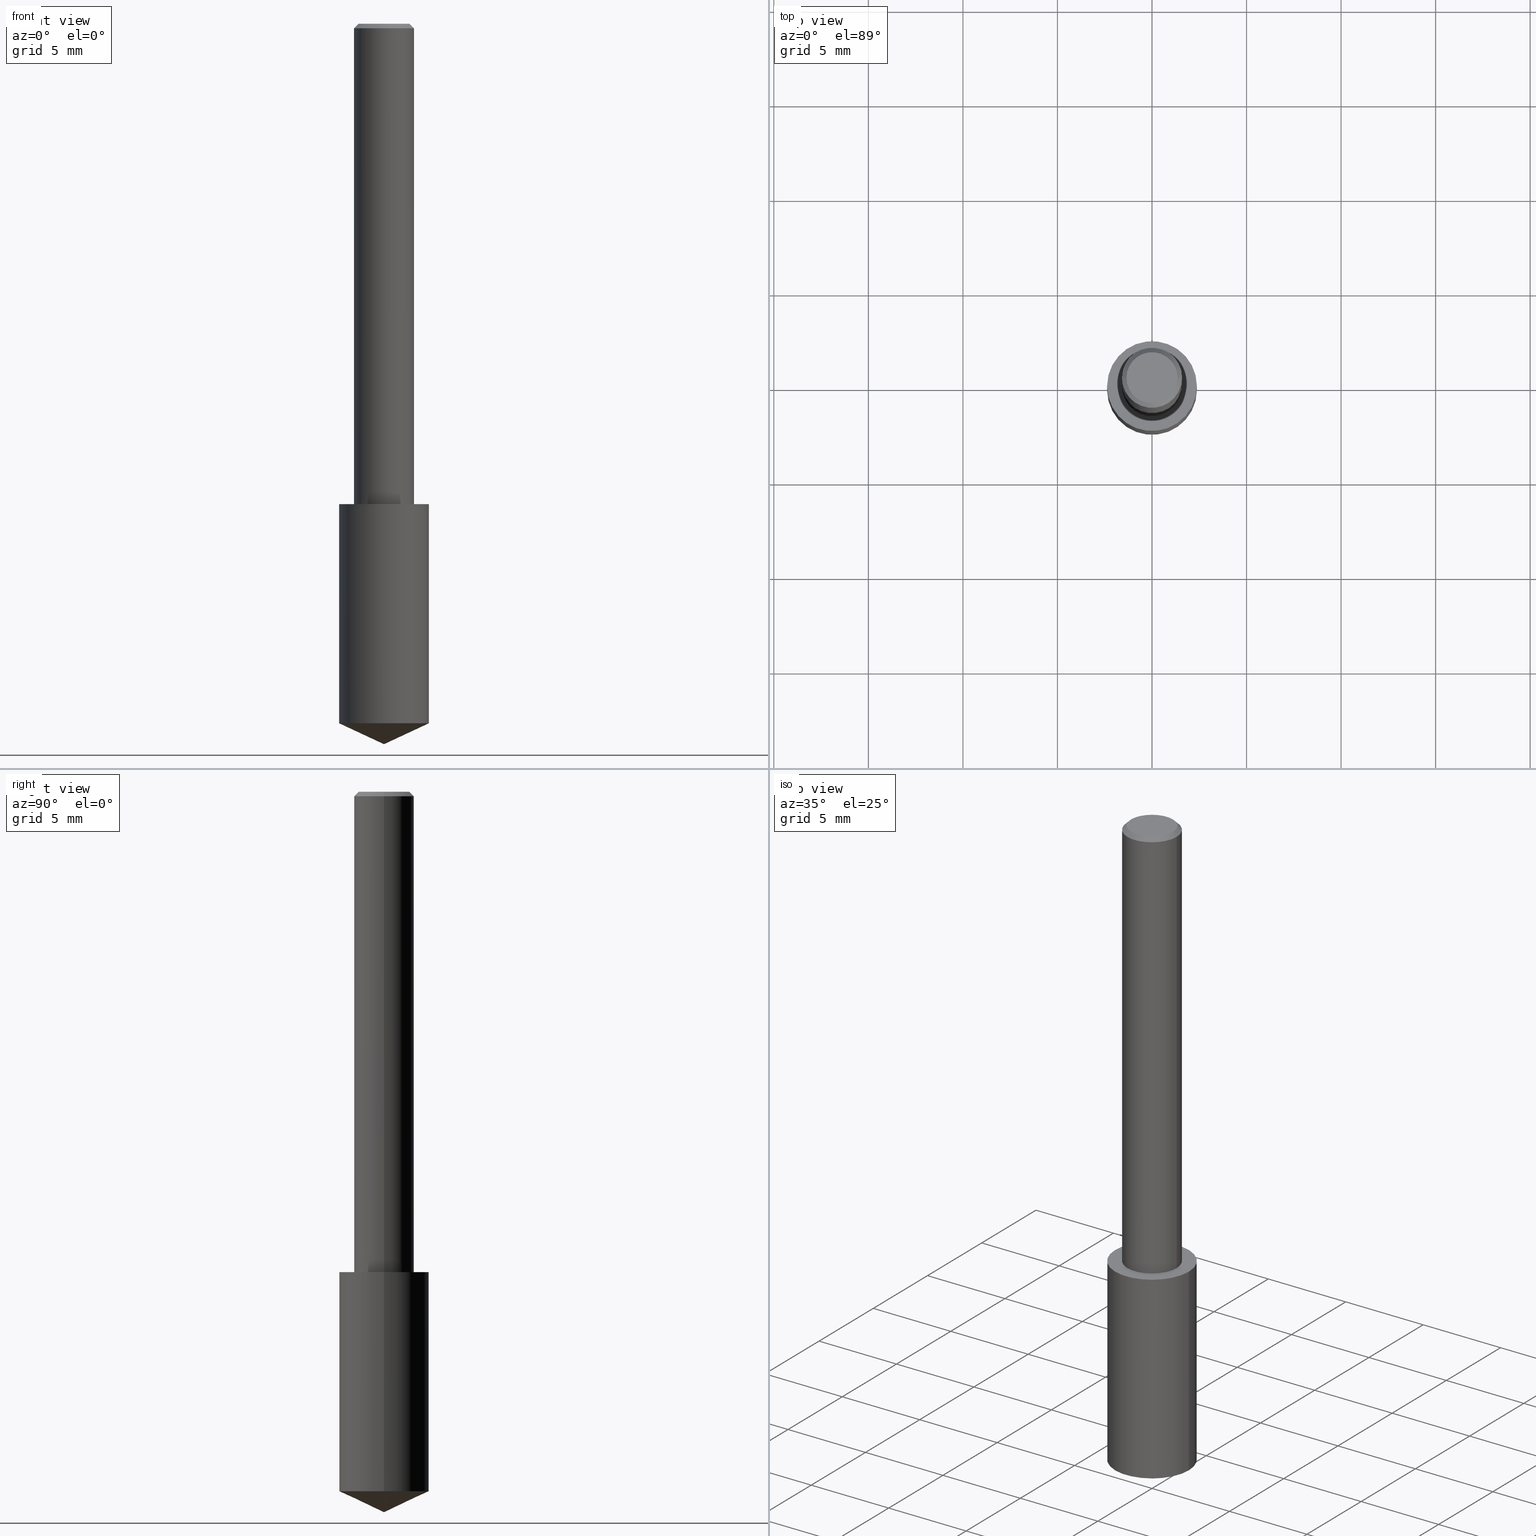
[diagram: canonical four-view strip — front | top / right | iso, engineering-drawing reading convention]
A machine part, canonical four-view strip (front | top / right | iso — engineering-drawing reading convention). The complete STEP part file that produces these views, byte-faithful:
ISO-10303-21;
HEADER;
FILE_DESCRIPTION (( 'STEP AP203' ),
    '1' );
FILE_NAME ('06121.STEP',
    '2024-04-30T18:30:01',
    ( '' ),
    ( '' ),
    'SwSTEP 2.0',
    'SolidWorks 2023',
    '' );
FILE_SCHEMA (( 'CONFIG_CONTROL_DESIGN' ));
ENDSEC;

DATA;
#1 = CARTESIAN_POINT ( 'NONE',  ( 0.06250000000000012490, -3.927916506198539224E-15, -1.000000000000000222 ) ) ;
#2 = AXIS2_PLACEMENT_3D ( 'NONE', #210, #87, #301 ) ;
#3 = LINE ( 'NONE', #76, #184 ) ;
#4 = VERTEX_POINT ( 'NONE', #61 ) ;
#5 = CIRCLE ( 'NONE', #177, 0.09349999999999999978 ) ;
#6 = PERSON_AND_ORGANIZATION ( #99, #314 ) ;
#7 = PERSON_AND_ORGANIZATION ( #99, #314 ) ;
#8 = ORIENTED_EDGE ( 'NONE', *, *, #222, .T. ) ;
#9 = AXIS2_PLACEMENT_3D ( 'NONE', #111, #305, #189 ) ;
#10 = DIRECTION ( 'NONE',  ( -2.445468806185136877E-29, 3.491481338843145188E-15, 1.000000000000000000 ) ) ;
#11 = CARTESIAN_POINT ( 'NONE',  ( 0.09349999999999998590, -5.737901249130553981E-15, -1.456400233962507951 ) ) ;
#12 = SHAPE_DEFINITION_REPRESENTATION ( #206, #250 ) ;
#13 = CARTESIAN_POINT ( 'NONE',  ( 0.05312499999999999861, -4.129888592719939842E-16, 3.061617000609493422E-21 ) ) ;
#14 = APPROVAL ( #331, 'UNSPECIFIED' ) ;
#15 = APPROVAL_ROLE ( '' ) ;
#16 = CARTESIAN_POINT ( 'NONE',  ( -0.06250000000000006939, 4.440892098500631092E-16, -3.074334431409319267E-30 ) ) ;
#17 = CARTESIAN_POINT ( 'NONE',  ( -7.487088864773345706E-50, 1.068957861474247695E-35, 3.061616997868395197E-21 ) ) ;
#18 = DIRECTION ( 'NONE',  ( -2.445468806185136877E-29, 3.491481338843145188E-15, 1.000000000000000000 ) ) ;
#19 = DIRECTION ( 'NONE',  ( -2.445468806185136877E-29, 3.491481338843145188E-15, 1.000000000000000000 ) ) ;
#20 = DIRECTION ( 'NONE',  ( 1.000000000000000000, -6.982962677686264344E-15, 0.000000000000000000 ) ) ;
#21 = CC_DESIGN_APPROVAL ( #158, ( #27 ) ) ;
#22 = DIRECTION ( 'NONE',  ( -2.445468806185136597E-29, 3.491481338843145583E-15, 1.000000000000000000 ) ) ;
#23 = PRODUCT_DEFINITION ( 'UNKNOWN', '', #150, #71 ) ;
#24 = EDGE_CURVE ( 'NONE', #299, #265, #247, .T. ) ;
#25 = AXIS2_PLACEMENT_3D ( 'NONE', #75, #175, #312 ) ;
#26 = VECTOR ( 'NONE', #18, 39.37007874015748143 ) ;
#27 = SECURITY_CLASSIFICATION ( '', '', #243 ) ;
#28 = CC_DESIGN_DATE_AND_TIME_ASSIGNMENT ( #337, #192, ( #27 ) ) ;
#29 = ORIENTED_EDGE ( 'NONE', *, *, #93, .T. ) ;
#30 = DIRECTION ( 'NONE',  ( -2.445468806185136597E-29, 3.491481338843145583E-15, 1.000000000000000000 ) ) ;
#31 = CARTESIAN_POINT ( 'NONE',  ( -9.261009624683002666E-28, 1.322226732217803884E-13, 37.87007874015748143 ) ) ;
#32 = PERSON_AND_ORGANIZATION ( #99, #314 ) ;
#33 = AXIS2_PLACEMENT_3D ( 'NONE', #330, #22, #116 ) ;
#34 = ORIENTED_EDGE ( 'NONE', *, *, #251, .F. ) ;
#35 = ORIENTED_EDGE ( 'NONE', *, *, #129, .F. ) ;
#36 = ADVANCED_FACE ( 'NONE', ( #89 ), #147, .T. ) ;
#37 = PERSON_AND_ORGANIZATION ( #99, #314 ) ;
#38 = ORIENTED_EDGE ( 'NONE', *, *, #190, .F. ) ;
#39 = CARTESIAN_POINT ( 'NONE',  ( -0.09349999999999999978, -2.827123880907452502E-15, -1.000000000000000222 ) ) ;
#40 = DIRECTION ( 'NONE',  ( -2.445468806185136597E-29, 3.491481338843145583E-15, 1.000000000000000000 ) ) ;
#41 = DIRECTION ( 'NONE',  ( -1.000000000000000000, 6.982962677686265922E-15, -4.876176775795935793E-29 ) ) ;
#42 = PRODUCT_RELATED_PRODUCT_CATEGORY ( 'detail', '', ( #304 ) ) ;
#43 = PLANE ( 'NONE',  #155 ) ;
#44 = PERSON_AND_ORGANIZATION_ROLE ( 'design_supplier' ) ;
#45 = DIRECTION ( 'NONE',  ( 1.000000000000000000, -6.982962677686266711E-15, 0.000000000000000000 ) ) ;
#46 = FACE_OUTER_BOUND ( 'NONE', #291, .T. ) ;
#47 = DIRECTION ( 'NONE',  ( 0.9063077870366507138, -4.853149677051390623E-15, 0.4226182617406978315 ) ) ;
#48 = LINE ( 'NONE', #39, #199 ) ;
#49 = PERSON_AND_ORGANIZATION ( #99, #314 ) ;
#50 = LINE ( 'NONE', #16, #231 ) ;
#51 = AXIS2_PLACEMENT_3D ( 'NONE', #140, #115, #276 ) ;
#52 = APPROVAL_PERSON_ORGANIZATION ( #303, #224, #160 ) ;
#53 = EDGE_CURVE ( 'NONE', #232, #259, #296, .T. ) ;
#54 = APPROVAL_PERSON_ORGANIZATION ( #6, #14, #102 ) ;
#55 = APPROVAL_STATUS ( 'not_yet_approved' ) ;
#56 = ORIENTED_EDGE ( 'NONE', *, *, #333, .T. ) ;
#57 = CC_DESIGN_PERSON_AND_ORGANIZATION_ASSIGNMENT ( #37, #137, ( #150 ) ) ;
#58 = DIRECTION ( 'NONE',  ( 0.000000000000000000, 0.000000000000000000, 1.000000000000000000 ) ) ;
#59 = DIRECTION ( 'NONE',  ( -2.445468806185136597E-29, 3.491481338843145583E-15, 1.000000000000000000 ) ) ;
#60 = EDGE_LOOP ( 'NONE', ( #101, #133, #235, #83 ) ) ;
#61 = CARTESIAN_POINT ( 'NONE',  ( -0.09349999999999999978, -3.623880330869323109E-15, -1.000000000000000222 ) ) ;
#62 = COORDINATED_UNIVERSAL_TIME_OFFSET ( 5, 0, .BEHIND. ) ;
#63 = CARTESIAN_POINT ( 'NONE',  ( 3.561581341476047635E-29, -5.084994238766887980E-15, -1.456400233962507951 ) ) ;
#64 = DIRECTION ( 'NONE',  ( 1.000000000000000000, 0.000000000000000000, 0.000000000000000000 ) ) ;
#65 = EDGE_CURVE ( 'NONE', #259, #232, #149, .T. ) ;
#66 = DIRECTION ( 'NONE',  ( -0.7071067811865453523, 2.468850131082234184E-15, -0.7071067811865496822 ) ) ;
#67 = CALENDAR_DATE ( 2024, 30, 4 ) ;
#68 = VERTEX_POINT ( 'NONE', #191 ) ;
#69 = EDGE_CURVE ( 'NONE', #79, #4, #48, .T. ) ;
#70 = DIRECTION ( 'NONE',  ( -2.445468806185136597E-29, 3.491481338843145583E-15, 1.000000000000000000 ) ) ;
#71 = DESIGN_CONTEXT ( 'detailed design', #105, 'design' ) ;
#72 = EDGE_CURVE ( 'NONE', #232, #157, #144, .T. ) ;
#73 = AXIS2_PLACEMENT_3D ( 'NONE', #153, #171, #151 ) ;
#74 = CC_DESIGN_APPROVAL ( #224, ( #150 ) ) ;
#75 = CARTESIAN_POINT ( 'NONE',  ( 2.292627005798580186E-31, -3.273263755165470184E-17, -0.009375000000000060368 ) ) ;
#76 = CARTESIAN_POINT ( 'NONE',  ( 3.668203209277704895E-29, -5.237222008264718177E-15, -1.500000000000000222 ) ) ;
#77 = ORIENTED_EDGE ( 'NONE', *, *, #96, .F. ) ;
#78 = APPROVAL_DATE_TIME ( #208, #14 ) ;
#79 = VERTEX_POINT ( 'NONE', #238 ) ;
#80 = VERTEX_POINT ( 'NONE', #242 ) ;
#81 = ORIENTED_EDGE ( 'NONE', *, *, #333, .F. ) ;
#82 = COORDINATED_UNIVERSAL_TIME_OFFSET ( 5, 0, .BEHIND. ) ;
#83 = ORIENTED_EDGE ( 'NONE', *, *, #284, .F. ) ;
#84 =( LENGTH_UNIT ( ) NAMED_UNIT ( * ) SI_UNIT ( $, .METRE. ) );
#85 = AXIS2_PLACEMENT_3D ( 'NONE', #306, #245, #100 ) ;
#86 = DIRECTION ( 'NONE',  ( 2.445468806185136597E-29, -3.491481338843145583E-15, -1.000000000000000000 ) ) ;
#87 = DIRECTION ( 'NONE',  ( -2.445468806185136597E-29, 3.491481338843145583E-15, 1.000000000000000000 ) ) ;
#88 = CARTESIAN_POINT ( 'NONE',  ( -3.743544432386672853E-50, 5.344789307371238476E-36, 1.530808498934197599E-21 ) ) ;
#89 = FACE_OUTER_BOUND ( 'NONE', #229, .T. ) ;
#90 = DIRECTION ( 'NONE',  ( 2.438088387897960049E-29, -3.491481338843145188E-15, -1.000000000000000000 ) ) ;
#91 = CARTESIAN_POINT ( 'NONE',  ( 2.292627005798580186E-31, -3.273263755165470184E-17, -0.009375000000000060368 ) ) ;
#92 = CARTESIAN_POINT ( 'NONE',  ( 0.06250000000000006939, -4.364351673553921624E-16, 3.047610484872463374E-30 ) ) ;
#93 = EDGE_CURVE ( 'NONE', #205, #68, #154, .T. ) ;
#94 = PERSON_AND_ORGANIZATION ( #99, #314 ) ;
#95 = DIRECTION ( 'NONE',  ( -2.445468806185136877E-29, 3.491481338843145188E-15, 1.000000000000000000 ) ) ;
#96 = EDGE_CURVE ( 'NONE', #292, #4, #113, .T. ) ;
#97 = ADVANCED_FACE ( 'NONE', ( #335 ), #310, .F. ) ;
#98 = ORIENTED_EDGE ( 'NONE', *, *, #124, .F. ) ;
#99 = PERSON ( 'UNSPECIFIED', 'UNSPECIFIED', 'UNSPECIFIED', ('UNSPECIFIED'), ('UNSPECIFIED'), ('UNSPECIFIED') ) ;
#100 = DIRECTION ( 'NONE',  ( 1.000000000000000000, -6.982962677686266711E-15, 0.000000000000000000 ) ) ;
#101 = ORIENTED_EDGE ( 'NONE', *, *, #69, .F. ) ;
#102 = APPROVAL_ROLE ( '' ) ;
#103 = AXIS2_PLACEMENT_3D ( 'NONE', #91, #86, #112 ) ;
#104 = DIRECTION ( 'NONE',  ( -2.445468806185136597E-29, 3.491481338843145583E-15, 1.000000000000000000 ) ) ;
#105 = APPLICATION_CONTEXT ( 'configuration controlled 3d designs of mechanical parts and assemblies' ) ;
#106 = DIRECTION ( 'NONE',  ( 1.000000000000000000, -6.982962677686266711E-15, 0.000000000000000000 ) ) ;
#107 = ORIENTED_EDGE ( 'NONE', *, *, #166, .T. ) ;
#108 = CALENDAR_DATE ( 2024, 30, 4 ) ;
#109 = DIRECTION ( 'NONE',  ( 1.000000000000000000, -6.982962677686266711E-15, 4.876176628004948512E-29 ) ) ;
#110 = CIRCLE ( 'NONE', #307, 0.09349999999999999978 ) ;
#111 = CARTESIAN_POINT ( 'NONE',  ( 2.445468806185137438E-29, -3.491481338843146371E-15, -1.000000000000000222 ) ) ;
#112 = DIRECTION ( 'NONE',  ( -1.000000000000000000, 6.982962677686266711E-15, 0.000000000000000000 ) ) ;
#113 = CIRCLE ( 'NONE', #2, 0.09349999999999999978 ) ;
#114 = APPROVAL_PERSON_ORGANIZATION ( #49, #158, #15 ) ;
#115 = DIRECTION ( 'NONE',  ( -2.445468806185136597E-29, 3.491481338843145583E-15, 1.000000000000000000 ) ) ;
#116 = DIRECTION ( 'NONE',  ( 1.000000000000000000, -6.982962677686265133E-15, 0.000000000000000000 ) ) ;
#117 = CARTESIAN_POINT ( 'NONE',  ( 3.465596751686188839E-29, -2.030600058808780877E-15, -1.000000000000000222 ) ) ;
#118 = FACE_OUTER_BOUND ( 'NONE', #60, .T. ) ;
#119 = PERSON_AND_ORGANIZATION_ROLE ( 'classification_officer' ) ;
#120 = LINE ( 'NONE', #92, #26 ) ;
#121 = LINE ( 'NONE', #272, #262 ) ;
#122 = AXIS2_PLACEMENT_3D ( 'NONE', #195, #273, #165 ) ;
#123 = DIRECTION ( 'NONE',  ( 1.000000000000000000, -6.982962677686266711E-15, 4.876176775795935793E-29 ) ) ;
#124 = EDGE_CURVE ( 'NONE', #259, #80, #332, .T. ) ;
#125 = VECTOR ( 'NONE', #139, 39.37007874015748143 ) ;
#126 = ADVANCED_FACE ( 'NONE', ( #309 ), #141, .T. ) ;
#127 = ORIENTED_EDGE ( 'NONE', *, *, #53, .T. ) ;
#128 = DIRECTION ( 'NONE',  ( 2.438088387897960049E-29, -3.491481338843145188E-15, -1.000000000000000000 ) ) ;
#129 = EDGE_CURVE ( 'NONE', #68, #80, #50, .T. ) ;
#130 = EDGE_LOOP ( 'NONE', ( #237, #185, #179, #98 ) ) ;
#131 = ORIENTED_EDGE ( 'NONE', *, *, #166, .F. ) ;
#132 = VECTOR ( 'NONE', #66, 39.37007874015748143 ) ;
#133 = ORIENTED_EDGE ( 'NONE', *, *, #246, .T. ) ;
#134 = LOCAL_TIME ( 14, 30, 1.000000000000000000, #62 ) ;
#135 = PLANE ( 'NONE',  #193 ) ;
#136 = EDGE_LOOP ( 'NONE', ( #324, #156, #180, #254 ) ) ;
#137 = PERSON_AND_ORGANIZATION_ROLE ( 'creator' ) ;
#138 = EDGE_LOOP ( 'NONE', ( #201, #127 ) ) ;
#139 = DIRECTION ( 'NONE',  ( 0.7071067811865453523, -7.319954787623248157E-15, -0.7071067811865496822 ) ) ;
#140 = CARTESIAN_POINT ( 'NONE',  ( 2.445468806185137438E-29, -3.491481338843146371E-15, -1.000000000000000222 ) ) ;
#141 = CONICAL_SURFACE ( 'NONE', #169, 84.42940631927434936, 1.134464013796316006 ) ;
#142 = DIRECTION ( 'NONE',  ( -2.445468806185136597E-29, 3.491481338843145583E-15, 1.000000000000000000 ) ) ;
#143 = DATE_AND_TIME ( #67, #164 ) ;
#144 = LINE ( 'NONE', #170, #125 ) ;
#145 = ADVANCED_FACE ( 'NONE', ( #118 ), #217, .T. ) ;
#146 = DIRECTION ( 'NONE',  ( -2.445468806185136597E-29, 3.491481338843145583E-15, 1.000000000000000000 ) ) ;
#147 = CYLINDRICAL_SURFACE ( 'NONE', #9, 0.09349999999999999978 ) ;
#148 = APPROVAL_STATUS ( 'not_yet_approved' ) ;
#149 = CIRCLE ( 'NONE', #252, 0.05312499999999999861 ) ;
#150 = PRODUCT_DEFINITION_FORMATION_WITH_SPECIFIED_SOURCE ( 'ANY', '', #304, .NOT_KNOWN. ) ;
#151 = DIRECTION ( 'NONE',  ( 1.000000000000000000, -6.982962677686266711E-15, 0.000000000000000000 ) ) ;
#152 = CC_DESIGN_DATE_AND_TIME_ASSIGNMENT ( #240, #289, ( #23 ) ) ;
#153 = CARTESIAN_POINT ( 'NONE',  ( 2.292627005798580186E-31, -3.273263755165470184E-17, -0.009375000000000060368 ) ) ;
#154 = CIRCLE ( 'NONE', #241, 0.06250000000000012490 ) ;
#155 = AXIS2_PLACEMENT_3D ( 'NONE', #117, #90, #302 ) ;
#156 = ORIENTED_EDGE ( 'NONE', *, *, #65, .F. ) ;
#157 = VERTEX_POINT ( 'NONE', #274 ) ;
#158 = APPROVAL ( #148, 'UNSPECIFIED' ) ;
#159 = ORIENTED_EDGE ( 'NONE', *, *, #24, .T. ) ;
#160 = APPROVAL_ROLE ( '' ) ;
#161 =( CONVERSION_BASED_UNIT ( 'INCH', #186 ) LENGTH_UNIT ( ) NAMED_UNIT ( #196 ) );
#162 = MANIFOLD_SOLID_BREP ( 'Body-Move/Copy2[2]', #256 ) ;
#163 = FACE_OUTER_BOUND ( 'NONE', #228, .T. ) ;
#164 = LOCAL_TIME ( 14, 30, 1.000000000000000000, #308 ) ;
#165 = DIRECTION ( 'NONE',  ( 1.000000000000000000, -6.982962677686266711E-15, 4.876176628004948512E-29 ) ) ;
#166 = EDGE_CURVE ( 'NONE', #68, #205, #223, .T. ) ;
#167 = CALENDAR_DATE ( 2024, 30, 4 ) ;
#168 =( NAMED_UNIT ( * ) PLANE_ANGLE_UNIT ( ) SI_UNIT ( $, .RADIAN. ) );
#169 = AXIS2_PLACEMENT_3D ( 'NONE', #271, #146, #45 ) ;
#170 = CARTESIAN_POINT ( 'NONE',  ( 0.06250000000000000000, -4.615137624123753937E-16, -0.009375000000000060368 ) ) ;
#171 = DIRECTION ( 'NONE',  ( -2.445468806185136597E-29, 3.491481338843145583E-15, 1.000000000000000000 ) ) ;
#172 = DIRECTION ( 'NONE',  ( -2.445468806185136597E-29, 3.491481338843145583E-15, 1.000000000000000000 ) ) ;
#173 = AXIS2_PLACEMENT_3D ( 'NONE', #31, #30, #106 ) ;
#174 = CONICAL_SURFACE ( 'NONE', #103, 0.06250000000000000000, 0.7853981633974452814 ) ;
#175 = DIRECTION ( 'NONE',  ( 2.445468806185136597E-29, -3.491481338843145583E-15, -1.000000000000000000 ) ) ;
#176 = CC_DESIGN_PERSON_AND_ORGANIZATION_ASSIGNMENT ( #94, #119, ( #27 ) ) ;
#177 = AXIS2_PLACEMENT_3D ( 'NONE', #236, #104, #293 ) ;
#178 = MECHANICAL_CONTEXT ( 'NONE', #318, 'mechanical' ) ;
#179 = ORIENTED_EDGE ( 'NONE', *, *, #182, .T. ) ;
#180 = ORIENTED_EDGE ( 'NONE', *, *, #124, .T. ) ;
#181 = DATE_AND_TIME ( #108, #278 ) ;
#182 = EDGE_CURVE ( 'NONE', #157, #80, #277, .T. ) ;
#183 = ORIENTED_EDGE ( 'NONE', *, *, #69, .T. ) ;
#184 = VECTOR ( 'NONE', #320, 39.37007874015748143 ) ;
#185 = ORIENTED_EDGE ( 'NONE', *, *, #72, .T. ) ;
#186 = LENGTH_MEASURE_WITH_UNIT ( LENGTH_MEASURE( 0.02539999999999999897 ), #84 );
#187 = CYLINDRICAL_SURFACE ( 'NONE', #211, 0.06250000000000006939 ) ;
#188 = CARTESIAN_POINT ( 'NONE',  ( 0.000000000000000000, 0.000000000000000000, 0.000000000000000000 ) ) ;
#189 = DIRECTION ( 'NONE',  ( 1.000000000000000000, -6.982962677686265133E-15, 0.000000000000000000 ) ) ;
#190 = EDGE_CURVE ( 'NONE', #265, #292, #121, .T. ) ;
#191 = CARTESIAN_POINT ( 'NONE',  ( -0.06250000000000012490, -1.318017778347335489E-15, -1.000000000000000222 ) ) ;
#192 = DATE_TIME_ROLE ( 'classification_date' ) ;
#193 = AXIS2_PLACEMENT_3D ( 'NONE', #88, #128, #41 ) ;
#194 = DIRECTION ( 'NONE',  ( 1.000000000000000000, -6.982962677686265922E-15, 4.876176775795935793E-29 ) ) ;
#195 = CARTESIAN_POINT ( 'NONE',  ( -7.487088864773345706E-50, 1.068957861474247695E-35, 3.061616997868395197E-21 ) ) ;
#196 = DIMENSIONAL_EXPONENTS ( 1.000000000000000000, 0.000000000000000000, 0.000000000000000000, 0.000000000000000000, 0.000000000000000000, 0.000000000000000000, 0.000000000000000000 ) ;
#197 = CARTESIAN_POINT ( 'NONE',  ( 2.445468806185137438E-29, -3.491481338843146371E-15, -1.000000000000000222 ) ) ;
#198 = AXIS2_PLACEMENT_3D ( 'NONE', #316, #70, #334 ) ;
#199 = VECTOR ( 'NONE', #10, 39.37007874015748143 ) ;
#200 = CC_DESIGN_SECURITY_CLASSIFICATION ( #27, ( #150 ) ) ;
#201 = ORIENTED_EDGE ( 'NONE', *, *, #65, .T. ) ;
#202 = ORIENTED_EDGE ( 'NONE', *, *, #182, .F. ) ;
#203 = COORDINATED_UNIVERSAL_TIME_OFFSET ( 5, 0, .BEHIND. ) ;
#204 =( GEOMETRIC_REPRESENTATION_CONTEXT ( 3 ) GLOBAL_UNCERTAINTY_ASSIGNED_CONTEXT ( ( #338 ) ) GLOBAL_UNIT_ASSIGNED_CONTEXT ( ( #161, #168, #230 ) ) REPRESENTATION_CONTEXT ( 'NONE', 'WORKASPACE' ) );
#205 = VERTEX_POINT ( 'NONE', #1 ) ;
#206 = PRODUCT_DEFINITION_SHAPE ( 'NONE', 'NONE',  #23 ) ;
#207 = ORIENTED_EDGE ( 'NONE', *, *, #93, .F. ) ;
#208 = DATE_AND_TIME ( #328, #311 ) ;
#209 = EDGE_LOOP ( 'NONE', ( #258, #234, #81 ) ) ;
#210 = CARTESIAN_POINT ( 'NONE',  ( 2.445468806185136877E-29, -3.491481338843145977E-15, -1.000000000000000222 ) ) ;
#211 = AXIS2_PLACEMENT_3D ( 'NONE', #264, #40, #123 ) ;
#212 = PERSON_AND_ORGANIZATION_ROLE ( 'creator' ) ;
#213 = CARTESIAN_POINT ( 'NONE',  ( 2.445468806185137438E-29, -3.491481338843146371E-15, -1.000000000000000222 ) ) ;
#214 = CC_DESIGN_PERSON_AND_ORGANIZATION_ASSIGNMENT ( #32, #266, ( #304 ) ) ;
#215 = DIRECTION ( 'NONE',  ( -2.438088387897960049E-29, 3.491481338843145188E-15, 1.000000000000000000 ) ) ;
#216 = CALENDAR_DATE ( 2024, 30, 4 ) ;
#217 = CYLINDRICAL_SURFACE ( 'NONE', #51, 0.09349999999999999978 ) ;
#218 = DIRECTION ( 'NONE',  ( -2.445468806185136597E-29, 3.491481338843145583E-15, 1.000000000000000000 ) ) ;
#219 = AXIS2_PLACEMENT_3D ( 'NONE', #197, #172, #283 ) ;
#220 = CC_DESIGN_APPROVAL ( #14, ( #23 ) ) ;
#221 = ADVANCED_FACE ( 'NONE', ( #46 ), #313, .T. ) ;
#222 = EDGE_CURVE ( 'NONE', #205, #157, #120, .T. ) ;
#223 = CIRCLE ( 'NONE', #219, 0.06250000000000012490 ) ;
#224 = APPROVAL ( #55, 'UNSPECIFIED' ) ;
#225 = CONICAL_SURFACE ( 'NONE', #25, 0.06250000000000000000, 0.7853981633974452814 ) ;
#226 = EDGE_LOOP ( 'NONE', ( #239, #317 ) ) ;
#227 = DIRECTION ( 'NONE',  ( 1.000000000000000000, -6.982962677686265133E-15, 0.000000000000000000 ) ) ;
#228 = EDGE_LOOP ( 'NONE', ( #29, #294, #202, #281 ) ) ;
#229 = EDGE_LOOP ( 'NONE', ( #56, #183, #77, #38 ) ) ;
#230 =( NAMED_UNIT ( * ) SI_UNIT ( $, .STERADIAN. ) SOLID_ANGLE_UNIT ( ) );
#231 = VECTOR ( 'NONE', #19, 39.37007874015748143 ) ;
#232 = VERTEX_POINT ( 'NONE', #13 ) ;
#233 = APPLICATION_PROTOCOL_DEFINITION ( 'international standard', 'config_control_design', 1994, #318 ) ;
#234 = ORIENTED_EDGE ( 'NONE', *, *, #251, .T. ) ;
#235 = ORIENTED_EDGE ( 'NONE', *, *, #190, .T. ) ;
#236 = CARTESIAN_POINT ( 'NONE',  ( 3.561581341476047635E-29, -5.084994238766887980E-15, -1.456400233962507951 ) ) ;
#237 = ORIENTED_EDGE ( 'NONE', *, *, #53, .F. ) ;
#238 = CARTESIAN_POINT ( 'NONE',  ( -0.09349999999999998590, -4.420636780831194111E-15, -1.456400233962507951 ) ) ;
#239 = ORIENTED_EDGE ( 'NONE', *, *, #96, .T. ) ;
#240 = DATE_AND_TIME ( #167, #134 ) ;
#241 = AXIS2_PLACEMENT_3D ( 'NONE', #213, #218, #20 ) ;
#242 = CARTESIAN_POINT ( 'NONE',  ( -0.06250000000000000000, -1.318017778347336672E-15, -0.009375000000000060368 ) ) ;
#243 = SECURITY_CLASSIFICATION_LEVEL ( 'unclassified' ) ;
#244 = CARTESIAN_POINT ( 'NONE',  ( 3.668203209277704895E-29, -5.237222008264718177E-15, -1.500000000000000222 ) ) ;
#245 = DIRECTION ( 'NONE',  ( -2.445468806185136597E-29, 3.491481338843145583E-15, 1.000000000000000000 ) ) ;
#246 = EDGE_CURVE ( 'NONE', #79, #265, #110, .T. ) ;
#247 = LINE ( 'NONE', #244, #269 ) ;
#248 = AXIS2_PLACEMENT_3D ( 'NONE', #268, #215, #194 ) ;
#249 = COORDINATED_UNIVERSAL_TIME_OFFSET ( 5, 0, .BEHIND. ) ;
#250 = ADVANCED_BREP_SHAPE_REPRESENTATION ( '06121', ( #280, #162, #340 ), #204 ) ;
#251 = EDGE_CURVE ( 'NONE', #299, #79, #3, .T. ) ;
#252 = AXIS2_PLACEMENT_3D ( 'NONE', #17, #142, #109 ) ;
#253 = CARTESIAN_POINT ( 'NONE',  ( -0.05312499999999999861, 3.873362110279099094E-16, 3.061616995216862494E-21 ) ) ;
#254 = ORIENTED_EDGE ( 'NONE', *, *, #282, .T. ) ;
#255 = ADVANCED_FACE ( 'NONE', ( #287 ), #225, .T. ) ;
#256 = CLOSED_SHELL ( 'NONE', ( #255, #286, #97, #221, #315, #322 ) ) ;
#257 = CARTESIAN_POINT ( 'NONE',  ( 0.09349999999999999978, -4.144388349206811978E-15, -1.000000000000000222 ) ) ;
#258 = ORIENTED_EDGE ( 'NONE', *, *, #24, .F. ) ;
#259 = VERTEX_POINT ( 'NONE', #253 ) ;
#260 = ORIENTED_EDGE ( 'NONE', *, *, #282, .F. ) ;
#261 = ORIENTED_EDGE ( 'NONE', *, *, #246, .F. ) ;
#262 = VECTOR ( 'NONE', #95, 39.37007874015748143 ) ;
#263 = LOCAL_TIME ( 14, 30, 1.000000000000000000, #249 ) ;
#264 = CARTESIAN_POINT ( 'NONE',  ( 0.000000000000000000, 0.000000000000000000, 0.000000000000000000 ) ) ;
#265 = VERTEX_POINT ( 'NONE', #11 ) ;
#266 = PERSON_AND_ORGANIZATION_ROLE ( 'design_owner' ) ;
#267 = FACE_OUTER_BOUND ( 'NONE', #209, .T. ) ;
#268 = CARTESIAN_POINT ( 'NONE',  ( 2.445468806185137438E-29, -3.491481338843146371E-15, -1.000000000000000222 ) ) ;
#269 = VECTOR ( 'NONE', #47, 39.37007874015748143 ) ;
#270 = FACE_OUTER_BOUND ( 'NONE', #226, .T. ) ;
#271 = CARTESIAN_POINT ( 'NONE',  ( -9.261009624683002666E-28, 1.322226732217803884E-13, 37.87007874015748143 ) ) ;
#272 = CARTESIAN_POINT ( 'NONE',  ( 0.09349999999999999978, -4.144388349206811978E-15, -1.000000000000000222 ) ) ;
#273 = DIRECTION ( 'NONE',  ( -2.445468806185136597E-29, 3.491481338843145583E-15, 1.000000000000000000 ) ) ;
#274 = CARTESIAN_POINT ( 'NONE',  ( 0.06250000000000000000, -4.691678049070463404E-16, -0.009375000000000060368 ) ) ;
#275 = ADVANCED_FACE ( 'NONE', ( #270 ), #43, .F. ) ;
#276 = DIRECTION ( 'NONE',  ( 1.000000000000000000, -6.982962677686265133E-15, 0.000000000000000000 ) ) ;
#277 = CIRCLE ( 'NONE', #73, 0.06250000000000000000 ) ;
#278 = LOCAL_TIME ( 14, 30, 1.000000000000000000, #82 ) ;
#279 = CARTESIAN_POINT ( 'NONE',  ( -0.06250000000000000000, 4.037025298037369984E-16, -0.009375000000000060368 ) ) ;
#280 = MANIFOLD_SOLID_BREP ( 'Body-Move/Copy2[1]', #285 ) ;
#281 = ORIENTED_EDGE ( 'NONE', *, *, #222, .F. ) ;
#282 = EDGE_CURVE ( 'NONE', #80, #157, #297, .T. ) ;
#283 = DIRECTION ( 'NONE',  ( 1.000000000000000000, -6.982962677686264344E-15, 0.000000000000000000 ) ) ;
#284 = EDGE_CURVE ( 'NONE', #4, #292, #336, .T. ) ;
#285 = CLOSED_SHELL ( 'NONE', ( #36, #329, #126, #145, #275 ) ) ;
#286 = ADVANCED_FACE ( 'NONE', ( #163 ), #187, .T. ) ;
#287 = FACE_OUTER_BOUND ( 'NONE', #130, .T. ) ;
#288 = FACE_OUTER_BOUND ( 'NONE', #136, .T. ) ;
#289 = DATE_TIME_ROLE ( 'creation_date' ) ;
#290 = CC_DESIGN_PERSON_AND_ORGANIZATION_ASSIGNMENT ( #7, #44, ( #150 ) ) ;
#291 = EDGE_LOOP ( 'NONE', ( #35, #107, #8, #260 ) ) ;
#292 = VERTEX_POINT ( 'NONE', #257 ) ;
#293 = DIRECTION ( 'NONE',  ( 1.000000000000000000, -6.982962677686265133E-15, 0.000000000000000000 ) ) ;
#294 = ORIENTED_EDGE ( 'NONE', *, *, #129, .T. ) ;
#295 = APPROVAL_DATE_TIME ( #181, #224 ) ;
#296 = CIRCLE ( 'NONE', #122, 0.05312499999999999861 ) ;
#297 = CIRCLE ( 'NONE', #85, 0.06250000000000000000 ) ;
#298 = CC_DESIGN_PERSON_AND_ORGANIZATION_ASSIGNMENT ( #326, #212, ( #23 ) ) ;
#299 = VERTEX_POINT ( 'NONE', #319 ) ;
#300 = APPLICATION_PROTOCOL_DEFINITION ( 'international standard', 'config_control_design', 1994, #105 ) ;
#301 = DIRECTION ( 'NONE',  ( 1.000000000000000000, -6.982962677686265133E-15, 0.000000000000000000 ) ) ;
#302 = DIRECTION ( 'NONE',  ( -1.000000000000000000, 6.982962677686265922E-15, -4.876176775795935793E-29 ) ) ;
#303 = PERSON_AND_ORGANIZATION ( #99, #314 ) ;
#304 = PRODUCT ( '06121', '06121', '', ( #178 ) ) ;
#305 = DIRECTION ( 'NONE',  ( -2.445468806185136597E-29, 3.491481338843145583E-15, 1.000000000000000000 ) ) ;
#306 = CARTESIAN_POINT ( 'NONE',  ( 2.292627005798580186E-31, -3.273263755165470184E-17, -0.009375000000000060368 ) ) ;
#307 = AXIS2_PLACEMENT_3D ( 'NONE', #63, #59, #227 ) ;
#308 = COORDINATED_UNIVERSAL_TIME_OFFSET ( 5, 0, .BEHIND. ) ;
#309 = FACE_OUTER_BOUND ( 'NONE', #325, .T. ) ;
#310 = PLANE ( 'NONE',  #248 ) ;
#311 = LOCAL_TIME ( 14, 30, 1.000000000000000000, #203 ) ;
#312 = DIRECTION ( 'NONE',  ( -1.000000000000000000, 6.982962677686266711E-15, 0.000000000000000000 ) ) ;
#313 = CYLINDRICAL_SURFACE ( 'NONE', #198, 0.06250000000000006939 ) ;
#314 = ORGANIZATION ( 'UNSPECIFIED', 'UNSPECIFIED', '' ) ;
#315 = ADVANCED_FACE ( 'NONE', ( #288 ), #174, .T. ) ;
#316 = CARTESIAN_POINT ( 'NONE',  ( 0.000000000000000000, 0.000000000000000000, 0.000000000000000000 ) ) ;
#317 = ORIENTED_EDGE ( 'NONE', *, *, #284, .T. ) ;
#318 = APPLICATION_CONTEXT ( 'configuration controlled 3d designs of mechanical parts and assemblies' ) ;
#319 = CARTESIAN_POINT ( 'NONE',  ( 3.668203209277704895E-29, -5.237222008264718177E-15, -1.500000000000000222 ) ) ;
#320 = DIRECTION ( 'NONE',  ( -0.9063077870366507138, 7.915267918739014631E-15, 0.4226182617406978315 ) ) ;
#321 = FACE_OUTER_BOUND ( 'NONE', #138, .T. ) ;
#322 = ADVANCED_FACE ( 'NONE', ( #321 ), #135, .F. ) ;
#323 = CONICAL_SURFACE ( 'NONE', #173, 84.42940631927434936, 1.134464013796316006 ) ;
#324 = ORIENTED_EDGE ( 'NONE', *, *, #72, .F. ) ;
#325 = EDGE_LOOP ( 'NONE', ( #34, #159, #261 ) ) ;
#326 = PERSON_AND_ORGANIZATION ( #99, #314 ) ;
#327 = EDGE_LOOP ( 'NONE', ( #207, #131 ) ) ;
#328 = CALENDAR_DATE ( 2024, 30, 4 ) ;
#329 = ADVANCED_FACE ( 'NONE', ( #267 ), #323, .T. ) ;
#330 = CARTESIAN_POINT ( 'NONE',  ( 2.445468806185136877E-29, -3.491481338843145977E-15, -1.000000000000000222 ) ) ;
#331 = APPROVAL_STATUS ( 'not_yet_approved' ) ;
#332 = LINE ( 'NONE', #279, #132 ) ;
#333 = EDGE_CURVE ( 'NONE', #265, #79, #5, .T. ) ;
#334 = DIRECTION ( 'NONE',  ( 1.000000000000000000, -6.982962677686266711E-15, 4.876176775795935793E-29 ) ) ;
#335 = FACE_OUTER_BOUND ( 'NONE', #327, .T. ) ;
#336 = CIRCLE ( 'NONE', #33, 0.09349999999999999978 ) ;
#337 = DATE_AND_TIME ( #216, #263 ) ;
#338 = UNCERTAINTY_MEASURE_WITH_UNIT (LENGTH_MEASURE( 1.000000000000000082E-05 ), #161, 'distance_accuracy_value', 'NONE');
#339 = APPROVAL_DATE_TIME ( #143, #158 ) ;
#340 = AXIS2_PLACEMENT_3D ( 'NONE', #188, #58, #64 ) ;
ENDSEC;
END-ISO-10303-21;
